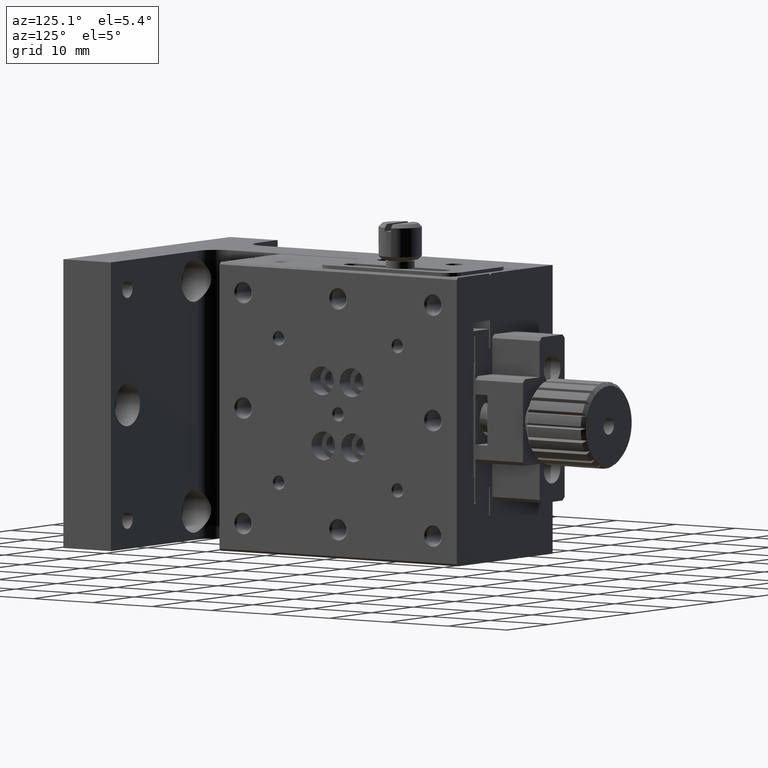
[diagram: clean part render]
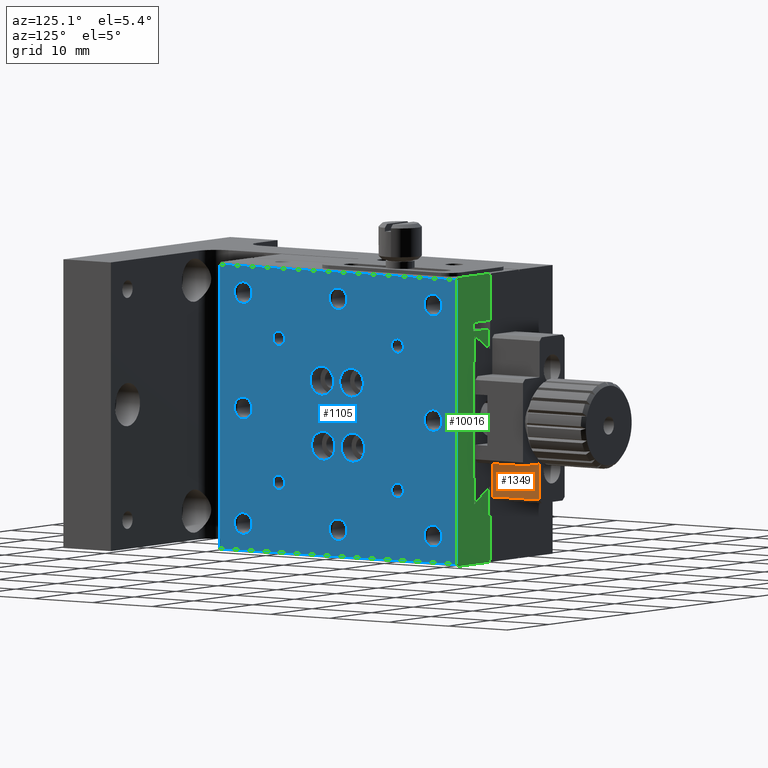
[diagram: same view with three faces highlighted in distinct colors, each labeled with its STEP entity id]
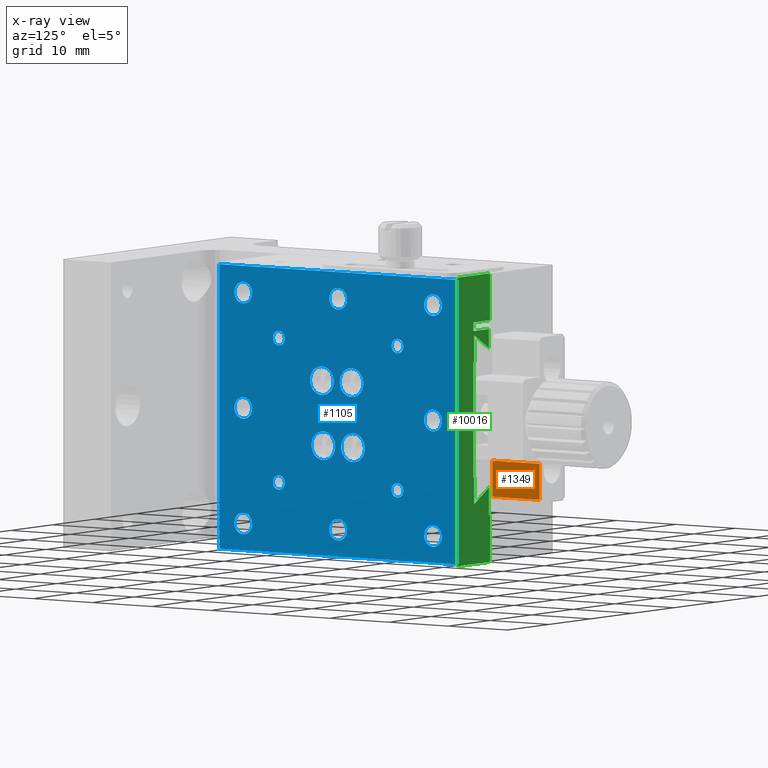
[diagram: x-ray of the same camera — body ghosted, the three highlighted faces saturated]
A machine part, auxiliary view with three faces highlighted in distinct colors.
The next image is the same camera in x-ray (body ghosted, the three faces saturated) — at least one of them is partly hidden behind the body in this view.
Their STEP definitions:

[orange] entity #1349 — the highlighted planar face has unit normal (1, 0, -0).
#24 = FACE_OUTER_BOUND ( 'NONE', #6105, .T. ) ;
#87 = CARTESIAN_POINT ( 'NONE',  ( 22.50000000000000000, 68.00000000000000000, -30.99999999999999645 ) ) ;
#260 = LINE ( 'NONE', #3422, #9553 ) ;
#509 = LINE ( 'NONE', #2769, #8584 ) ;
#581 = ORIENTED_EDGE ( 'NONE', *, *, #3580, .T. ) ;
#1212 = ORIENTED_EDGE ( 'NONE', *, *, #8216, .T. ) ;
#1349 = ADVANCED_FACE ( 'NONE', ( #24 ), #1753, .T. ) ;
#1735 = AXIS2_PLACEMENT_3D ( 'NONE', #8925, #2551, #8094 ) ;
#1753 = PLANE ( 'NONE',  #1735 ) ;
#1773 = VECTOR ( 'NONE', #4561, 1000.000000000000000 ) ;
#2286 = LINE ( 'NONE', #5500, #1773 ) ;
#2551 = DIRECTION ( 'NONE',  ( 1.000000000000000000, 0.000000000000000000, -0.000000000000000000 ) ) ;
#2769 = CARTESIAN_POINT ( 'NONE',  ( 22.50000000000000000, 68.00000000000000000, -30.99999999999999645 ) ) ;
#3189 = DIRECTION ( 'NONE',  ( 0.000000000000000000, 0.000000000000000000, -1.000000000000000000 ) ) ;
#3316 = VERTEX_POINT ( 'NONE', #5100 ) ;
#3422 = CARTESIAN_POINT ( 'NONE',  ( 22.50000000000000000, 68.00000000000000000, -26.00000000000000000 ) ) ;
#3495 = EDGE_CURVE ( 'NONE', #6792, #3316, #2286, .T. ) ;
#3580 = EDGE_CURVE ( 'NONE', #5530, #9506, #6508, .T. ) ;
#3785 = VECTOR ( 'NONE', #3189, 1000.000000000000000 ) ;
#4297 = ORIENTED_EDGE ( 'NONE', *, *, #3495, .T. ) ;
#4348 = ORIENTED_EDGE ( 'NONE', *, *, #6431, .F. ) ;
#4449 = DIRECTION ( 'NONE',  ( -0.000000000000000000, 1.000000000000000000, -0.000000000000000000 ) ) ;
#4561 = DIRECTION ( 'NONE',  ( 0.000000000000000000, 0.000000000000000000, 1.000000000000000000 ) ) ;
#5100 = CARTESIAN_POINT ( 'NONE',  ( 22.50000000000000000, 68.00000000000000000, -26.00000000000000000 ) ) ;
#5500 = CARTESIAN_POINT ( 'NONE',  ( 22.50000000000000000, 68.00000000000000000, -30.99999999999999645 ) ) ;
#5530 = VERTEX_POINT ( 'NONE', #8447 ) ;
#6105 = EDGE_LOOP ( 'NONE', ( #4297, #4348, #581, #1212 ) ) ;
#6431 = EDGE_CURVE ( 'NONE', #5530, #3316, #260, .T. ) ;
#6508 = LINE ( 'NONE', #8824, #3785 ) ;
#6529 = DIRECTION ( 'NONE',  ( 0.000000000000000000, 1.000000000000000000, 0.000000000000000000 ) ) ;
#6792 = VERTEX_POINT ( 'NONE', #87 ) ;
#8094 = DIRECTION ( 'NONE',  ( 0.000000000000000000, 0.000000000000000000, 1.000000000000000000 ) ) ;
#8216 = EDGE_CURVE ( 'NONE', #9506, #6792, #509, .T. ) ;
#8447 = CARTESIAN_POINT ( 'NONE',  ( 22.50000000000000000, 60.00000000000000000, -26.00000000000000000 ) ) ;
#8584 = VECTOR ( 'NONE', #4449, 1000.000000000000000 ) ;
#8824 = CARTESIAN_POINT ( 'NONE',  ( 22.50000000000000000, 60.00000000000000000, 4.898587196589409870E-15 ) ) ;
#8925 = CARTESIAN_POINT ( 'NONE',  ( 22.50000000000000000, 68.00000000000000000, -30.99999999999999645 ) ) ;
#9104 = CARTESIAN_POINT ( 'NONE',  ( 22.50000000000000000, 60.00000000000000000, -30.99999999999999645 ) ) ;
#9506 = VERTEX_POINT ( 'NONE', #9104 ) ;
#9553 = VECTOR ( 'NONE', #6529, 1000.000000000000000 ) ;

[blue] entity #1105 — the highlighted planar face has unit normal (-1, 0, 0).
#40 = FACE_BOUND ( 'NONE', #9294, .T. ) ;
#59 = DIRECTION ( 'NONE',  ( 1.000000000000000000, 0.000000000000000000, 0.000000000000000000 ) ) ;
#66 = VERTEX_POINT ( 'NONE', #1497 ) ;
#135 = CARTESIAN_POINT ( 'NONE',  ( 31.00000000000000000, 23.99999999999999289, -34.49999999997998401 ) ) ;
#149 = CARTESIAN_POINT ( 'NONE',  ( 30.99999999994315658, 55.99999999999999289, -2.500000000054564353 ) ) ;
#262 = DIRECTION ( 'NONE',  ( 1.000000000000000000, 0.000000000000000000, 0.000000000000000000 ) ) ;
#263 = CIRCLE ( 'NONE', #8657, 1.999999999999998224 ) ;
#386 = EDGE_CURVE ( 'NONE', #2745, #2745, #1376, .T. ) ;
#391 = CARTESIAN_POINT ( 'NONE',  ( 31.00000000000000000, 30.00000000000000000, -8.999999999957703167 ) ) ;
#431 = EDGE_CURVE ( 'NONE', #6435, #3590, #1585, .T. ) ;
#488 = CARTESIAN_POINT ( 'NONE',  ( 31.00000000000000000, 23.99999999999999289, -19.99999999999999645 ) ) ;
#668 = VERTEX_POINT ( 'NONE', #3711 ) ;
#671 = EDGE_CURVE ( 'NONE', #1743, #1743, #4580, .T. ) ;
#697 = ORIENTED_EDGE ( 'NONE', *, *, #8489, .F. ) ;
#717 = AXIS2_PLACEMENT_3D ( 'NONE', #9646, #3208, #6373 ) ;
#777 = FACE_BOUND ( 'NONE', #9437, .T. ) ;
#785 = AXIS2_PLACEMENT_3D ( 'NONE', #3931, #7210, #6308 ) ;
#832 = FACE_BOUND ( 'NONE', #5016, .T. ) ;
#871 = CARTESIAN_POINT ( 'NONE',  ( 31.00000000005684342, 39.99999999999999289, -18.99999999994861000 ) ) ;
#880 = CARTESIAN_POINT ( 'NONE',  ( 31.00000000000000000, 55.99999999999999289, -19.99999999999999645 ) ) ;
#965 = CARTESIAN_POINT ( 'NONE',  ( 31.00000000000000000, 42.24999999999999289, -17.49999999999999645 ) ) ;
#980 = VERTEX_POINT ( 'NONE', #4178 ) ;
#995 = VERTEX_POINT ( 'NONE', #1556 ) ;
#1105 = ADVANCED_FACE ( 'NONE', ( #2293, #8887, #4028, #1608, #832, #3874, #8777, #777, #7254, #4771, #3085, #3300, #40, #6517, #3973, #3246, #4881, #6300 ), #9685, .F. ) ;
#1114 = DIRECTION ( 'NONE',  ( 1.000000000000000000, -0.000000000000000000, -0.000000000000000000 ) ) ;
#1148 = EDGE_LOOP ( 'NONE', ( #9399 ) ) ;
#1171 = CARTESIAN_POINT ( 'NONE',  ( 31.00000000000000000, 23.99999999999999289, -18.50000000001727685 ) ) ;
#1219 = VERTEX_POINT ( 'NONE', #10185 ) ;
#1260 = AXIS2_PLACEMENT_3D ( 'NONE', #488, #2163, #6861 ) ;
#1265 = ORIENTED_EDGE ( 'NONE', *, *, #6188, .F. ) ;
#1270 = DIRECTION ( 'NONE',  ( 1.000000000000000000, 0.000000000000000000, 0.000000000000000000 ) ) ;
#1376 = CIRCLE ( 'NONE', #6759, 1.000000000042291726 ) ;
#1455 = CIRCLE ( 'NONE', #9386, 0.9999999999467934497 ) ;
#1497 = CARTESIAN_POINT ( 'NONE',  ( 30.99999999999999289, 19.99999999999999645, -39.69999999999999574 ) ) ;
#1503 = CIRCLE ( 'NONE', #7411, 1.499999999945430318 ) ;
#1531 = VECTOR ( 'NONE', #7122, 1000.000000000000000 ) ;
#1556 = CARTESIAN_POINT ( 'NONE',  ( 31.00000000000000000, 37.50000000000000000, -26.49999999999999645 ) ) ;
#1585 = LINE ( 'NONE', #4859, #1531 ) ;
#1608 = FACE_BOUND ( 'NONE', #4981, .T. ) ;
#1645 = VERTEX_POINT ( 'NONE', #5685 ) ;
#1650 = DIRECTION ( 'NONE',  ( 0.000000000000000000, 0.000000000000000000, 1.000000000000000000 ) ) ;
#1743 = VERTEX_POINT ( 'NONE', #965 ) ;
#1817 = ORIENTED_EDGE ( 'NONE', *, *, #386, .F. ) ;
#1891 = EDGE_CURVE ( 'NONE', #1219, #1219, #8478, .T. ) ;
#1952 = AXIS2_PLACEMENT_3D ( 'NONE', #2498, #3336, #1650 ) ;
#2022 = DIRECTION ( 'NONE',  ( 1.000000000000000000, 0.000000000000000000, 0.000000000000000000 ) ) ;
#2054 = DIRECTION ( 'NONE',  ( 0.000000000000000000, 0.000000000000000000, 1.000000000000000000 ) ) ;
#2163 = DIRECTION ( 'NONE',  ( 1.000000000000000000, 0.000000000000000000, 0.000000000000000000 ) ) ;
#2180 = CIRCLE ( 'NONE', #9942, 1.500000000020013102 ) ;
#2203 = EDGE_CURVE ( 'NONE', #3590, #1645, #4247, .T. ) ;
#2293 = FACE_OUTER_BOUND ( 'NONE', #9326, .T. ) ;
#2314 = EDGE_CURVE ( 'NONE', #1645, #66, #10352, .T. ) ;
#2324 = CARTESIAN_POINT ( 'NONE',  ( 30.99999999999999645, 19.99999999999999645, -39.69999999999999574 ) ) ;
#2342 = ORIENTED_EDGE ( 'NONE', *, *, #7385, .F. ) ;
#2429 = DIRECTION ( 'NONE',  ( 0.000000000000000000, -1.000000000000000000, 0.000000000000000000 ) ) ;
#2458 = VERTEX_POINT ( 'NONE', #149 ) ;
#2467 = CIRCLE ( 'NONE', #785, 1.499999999945430318 ) ;
#2493 = EDGE_LOOP ( 'NONE', ( #9894 ) ) ;
#2498 = CARTESIAN_POINT ( 'NONE',  ( 31.00000000000000000, 55.99999999999999289, -36.00000000000000000 ) ) ;
#2533 = EDGE_CURVE ( 'NONE', #8728, #8728, #3445, .T. ) ;
#2591 = DIRECTION ( 'NONE',  ( 1.000000000000000000, -0.000000000000000000, -0.000000000000000000 ) ) ;
#2620 = CARTESIAN_POINT ( 'NONE',  ( 30.99999999994315658, 30.00000000000000000, -29.00000000005320189 ) ) ;
#2652 = AXIS2_PLACEMENT_3D ( 'NONE', #10026, #2591, #7497 ) ;
#2668 = AXIS2_PLACEMENT_3D ( 'NONE', #880, #6513, #9900 ) ;
#2739 = EDGE_LOOP ( 'NONE', ( #697 ) ) ;
#2741 = AXIS2_PLACEMENT_3D ( 'NONE', #9523, #9742, #4669 ) ;
#2745 = VERTEX_POINT ( 'NONE', #8135 ) ;
#2824 = AXIS2_PLACEMENT_3D ( 'NONE', #6202, #9424, #5355 ) ;
#2891 = EDGE_CURVE ( 'NONE', #995, #995, #263, .T. ) ;
#2903 = ORIENTED_EDGE ( 'NONE', *, *, #6843, .F. ) ;
#2949 = EDGE_LOOP ( 'NONE', ( #2342 ) ) ;
#3085 = FACE_BOUND ( 'NONE', #3615, .T. ) ;
#3208 = DIRECTION ( 'NONE',  ( 1.000000000000000000, -0.000000000000000000, -0.000000000000000000 ) ) ;
#3246 = FACE_BOUND ( 'NONE', #1148, .T. ) ;
#3300 = FACE_BOUND ( 'NONE', #2949, .T. ) ;
#3315 = VECTOR ( 'NONE', #8539, 1000.000000000000000 ) ;
#3336 = DIRECTION ( 'NONE',  ( 1.000000000000000000, 0.000000000000000000, 0.000000000000000000 ) ) ;
#3425 = ORIENTED_EDGE ( 'NONE', *, *, #671, .F. ) ;
#3445 = CIRCLE ( 'NONE', #1260, 1.499999999982720045 ) ;
#3517 = ORIENTED_EDGE ( 'NONE', *, *, #5380, .F. ) ;
#3590 = VERTEX_POINT ( 'NONE', #7355 ) ;
#3615 = EDGE_LOOP ( 'NONE', ( #5962 ) ) ;
#3693 = ORIENTED_EDGE ( 'NONE', *, *, #431, .F. ) ;
#3711 = CARTESIAN_POINT ( 'NONE',  ( 31.00000000000000000, 55.99999999999999289, -18.50000000001727685 ) ) ;
#3720 = DIRECTION ( 'NONE',  ( 1.000000000000000000, 0.000000000000000000, 0.000000000000000000 ) ) ;
#3786 = CARTESIAN_POINT ( 'NONE',  ( 30.99999999999999645, 19.99999999999999645, -39.69999999999999574 ) ) ;
#3795 = DIRECTION ( 'NONE',  ( 1.000000000000000000, 0.000000000000000000, 0.000000000000000000 ) ) ;
#3846 = AXIS2_PLACEMENT_3D ( 'NONE', #9349, #7717, #9297 ) ;
#3863 = VERTEX_POINT ( 'NONE', #10312 ) ;
#3874 = FACE_BOUND ( 'NONE', #2739, .T. ) ;
#3877 = CARTESIAN_POINT ( 'NONE',  ( 31.00000000000000000, 39.99999999999999289, -36.00000000000000000 ) ) ;
#3931 = CARTESIAN_POINT ( 'NONE',  ( 30.99999999994315658, 55.99999999999999289, -3.999999999999994671 ) ) ;
#3973 = FACE_BOUND ( 'NONE', #9948, .T. ) ;
#4028 = FACE_BOUND ( 'NONE', #4286, .T. ) ;
#4098 = CARTESIAN_POINT ( 'NONE',  ( 30.99999999994315658, 39.99999999999999289, -3.999999999999994671 ) ) ;
#4178 = CARTESIAN_POINT ( 'NONE',  ( 31.00000000000000000, 37.25000000000000000, -17.49999999999999645 ) ) ;
#4194 = EDGE_CURVE ( 'NONE', #2458, #2458, #2467, .T. ) ;
#4247 = LINE ( 'NONE', #6732, #8485 ) ;
#4286 = EDGE_LOOP ( 'NONE', ( #4984 ) ) ;
#4303 = CIRCLE ( 'NONE', #1952, 1.500000000020013102 ) ;
#4315 = DIRECTION ( 'NONE',  ( 0.000000000000000000, 0.000000000000000000, -1.000000000000000000 ) ) ;
#4505 = VERTEX_POINT ( 'NONE', #10265 ) ;
#4580 = CIRCLE ( 'NONE', #717, 2.000000000000000000 ) ;
#4669 = DIRECTION ( 'NONE',  ( -1.230518249841690057E-16, -0.000000000000000000, -1.000000000000000000 ) ) ;
#4771 = FACE_BOUND ( 'NONE', #6825, .T. ) ;
#4859 = CARTESIAN_POINT ( 'NONE',  ( 31.00000000000000000, 19.99999999999999645, -0.3000000000000175859 ) ) ;
#4881 = FACE_BOUND ( 'NONE', #5373, .T. ) ;
#4981 = EDGE_LOOP ( 'NONE', ( #8035 ) ) ;
#4984 = ORIENTED_EDGE ( 'NONE', *, *, #8529, .F. ) ;
#5016 = EDGE_LOOP ( 'NONE', ( #10105 ) ) ;
#5190 = CIRCLE ( 'NONE', #9577, 1.000000000051386895 ) ;
#5231 = DIRECTION ( 'NONE',  ( 0.000000000000000000, 0.000000000000000000, 1.000000000000000000 ) ) ;
#5316 = CARTESIAN_POINT ( 'NONE',  ( 30.99999999994315658, 30.00000000000000000, -29.99999999999999645 ) ) ;
#5355 = DIRECTION ( 'NONE',  ( 0.000000000000000000, 0.000000000000000000, 1.000000000000000000 ) ) ;
#5373 = EDGE_LOOP ( 'NONE', ( #10211 ) ) ;
#5380 = EDGE_CURVE ( 'NONE', #8415, #8415, #4303, .T. ) ;
#5685 = CARTESIAN_POINT ( 'NONE',  ( 30.99999999999999289, 60.00000000000000000, -39.69999999999999574 ) ) ;
#5718 = EDGE_LOOP ( 'NONE', ( #7656 ) ) ;
#5851 = CARTESIAN_POINT ( 'NONE',  ( 31.00000000000000000, 37.50000000000000000, -24.49999999999999645 ) ) ;
#5854 = AXIS2_PLACEMENT_3D ( 'NONE', #5996, #3720, #9423 ) ;
#5938 = DIRECTION ( 'NONE',  ( -1.230518249841690057E-16, -0.000000000000000000, -1.000000000000000000 ) ) ;
#5962 = ORIENTED_EDGE ( 'NONE', *, *, #7737, .F. ) ;
#5996 = CARTESIAN_POINT ( 'NONE',  ( 30.99999999994315658, 23.99999999999999289, -3.999999999999994671 ) ) ;
#6000 = EDGE_CURVE ( 'NONE', #8311, #8311, #8040, .T. ) ;
#6125 = EDGE_CURVE ( 'NONE', #10004, #10004, #1455, .T. ) ;
#6166 = CARTESIAN_POINT ( 'NONE',  ( 30.99999999994315658, 49.99999999999999289, -29.99999999999999645 ) ) ;
#6174 = CARTESIAN_POINT ( 'NONE',  ( 31.00000000000000000, 23.99999999999999289, -36.00000000000000000 ) ) ;
#6188 = EDGE_CURVE ( 'NONE', #66, #6435, #7703, .T. ) ;
#6202 = CARTESIAN_POINT ( 'NONE',  ( 31.00000000000000000, 30.00000000000000000, -9.999999999999994671 ) ) ;
#6203 = CIRCLE ( 'NONE', #6368, 0.9999999999467934497 ) ;
#6291 = ORIENTED_EDGE ( 'NONE', *, *, #6125, .F. ) ;
#6300 = FACE_BOUND ( 'NONE', #7514, .T. ) ;
#6308 = DIRECTION ( 'NONE',  ( 0.000000000000000000, 0.000000000000000000, 1.000000000000000000 ) ) ;
#6368 = AXIS2_PLACEMENT_3D ( 'NONE', #6166, #1270, #2054 ) ;
#6373 = DIRECTION ( 'NONE',  ( 0.000000000000000000, 0.000000000000000000, -1.000000000000000000 ) ) ;
#6400 = VERTEX_POINT ( 'NONE', #135 ) ;
#6435 = VERTEX_POINT ( 'NONE', #7379 ) ;
#6449 = AXIS2_PLACEMENT_3D ( 'NONE', #3877, #9477, #7843 ) ;
#6501 = EDGE_CURVE ( 'NONE', #4505, #4505, #7372, .T. ) ;
#6513 = DIRECTION ( 'NONE',  ( 1.000000000000000000, 0.000000000000000000, 0.000000000000000000 ) ) ;
#6517 = FACE_BOUND ( 'NONE', #7819, .T. ) ;
#6578 = ORIENTED_EDGE ( 'NONE', *, *, #9338, .F. ) ;
#6690 = DIRECTION ( 'NONE',  ( 0.000000000000000000, 0.000000000000000000, 1.000000000000000000 ) ) ;
#6732 = CARTESIAN_POINT ( 'NONE',  ( 30.99999999999999645, 60.00000000000000000, -39.69999999999999574 ) ) ;
#6759 = AXIS2_PLACEMENT_3D ( 'NONE', #9251, #2022, #5231 ) ;
#6810 = VERTEX_POINT ( 'NONE', #391 ) ;
#6824 = CARTESIAN_POINT ( 'NONE',  ( 31.00000000000000000, 42.49999999999999289, -26.49999999999999645 ) ) ;
#6825 = EDGE_LOOP ( 'NONE', ( #1817 ) ) ;
#6843 = EDGE_CURVE ( 'NONE', #668, #668, #10249, .T. ) ;
#6849 = ORIENTED_EDGE ( 'NONE', *, *, #2891, .F. ) ;
#6861 = DIRECTION ( 'NONE',  ( 0.000000000000000000, 0.000000000000000000, 1.000000000000000000 ) ) ;
#7011 = DIRECTION ( 'NONE',  ( 0.000000000000000000, 0.000000000000000000, 1.000000000000000000 ) ) ;
#7122 = DIRECTION ( 'NONE',  ( -0.000000000000000000, 1.000000000000000000, -0.000000000000000000 ) ) ;
#7210 = DIRECTION ( 'NONE',  ( 1.000000000000000000, 0.000000000000000000, 0.000000000000000000 ) ) ;
#7254 = FACE_BOUND ( 'NONE', #10078, .T. ) ;
#7355 = CARTESIAN_POINT ( 'NONE',  ( 30.99999999999999645, 60.00000000000000000, -0.3000000000000170308 ) ) ;
#7372 = CIRCLE ( 'NONE', #5854, 1.499999999945430318 ) ;
#7378 = CIRCLE ( 'NONE', #2824, 1.000000000042291726 ) ;
#7379 = CARTESIAN_POINT ( 'NONE',  ( 30.99999999999999645, 19.99999999999999645, -0.3000000000000154210 ) ) ;
#7385 = EDGE_CURVE ( 'NONE', #3863, #3863, #6203, .T. ) ;
#7411 = AXIS2_PLACEMENT_3D ( 'NONE', #4098, #59, #9706 ) ;
#7486 = CARTESIAN_POINT ( 'NONE',  ( 31.00000000005684342, 39.99999999999999289, -19.99999999999999645 ) ) ;
#7497 = DIRECTION ( 'NONE',  ( 0.000000000000000000, 0.000000000000000000, -1.000000000000000000 ) ) ;
#7514 = EDGE_LOOP ( 'NONE', ( #6849 ) ) ;
#7519 = ORIENTED_EDGE ( 'NONE', *, *, #2203, .F. ) ;
#7656 = ORIENTED_EDGE ( 'NONE', *, *, #4194, .F. ) ;
#7703 = LINE ( 'NONE', #3786, #3315 ) ;
#7717 = DIRECTION ( 'NONE',  ( 1.000000000000000000, -0.000000000000000000, -0.000000000000000000 ) ) ;
#7737 = EDGE_CURVE ( 'NONE', #8765, #8765, #5190, .T. ) ;
#7819 = EDGE_LOOP ( 'NONE', ( #6578 ) ) ;
#7843 = DIRECTION ( 'NONE',  ( 0.000000000000000000, 0.000000000000000000, 1.000000000000000000 ) ) ;
#8028 = ORIENTED_EDGE ( 'NONE', *, *, #2314, .F. ) ;
#8035 = ORIENTED_EDGE ( 'NONE', *, *, #6501, .F. ) ;
#8040 = CIRCLE ( 'NONE', #2652, 1.999999999999998224 ) ;
#8135 = CARTESIAN_POINT ( 'NONE',  ( 31.00000000000000000, 49.99999999999999289, -8.999999999957703167 ) ) ;
#8311 = VERTEX_POINT ( 'NONE', #6824 ) ;
#8415 = VERTEX_POINT ( 'NONE', #8461 ) ;
#8461 = CARTESIAN_POINT ( 'NONE',  ( 31.00000000000000000, 55.99999999999999289, -34.49999999997998401 ) ) ;
#8478 = CIRCLE ( 'NONE', #6449, 1.500000000020013102 ) ;
#8485 = VECTOR ( 'NONE', #5938, 1000.000000000000000 ) ;
#8489 = EDGE_CURVE ( 'NONE', #6400, #6400, #2180, .T. ) ;
#8529 = EDGE_CURVE ( 'NONE', #10361, #10361, #1503, .T. ) ;
#8539 = DIRECTION ( 'NONE',  ( 1.230518249841690057E-16, 0.000000000000000000, 1.000000000000000000 ) ) ;
#8657 = AXIS2_PLACEMENT_3D ( 'NONE', #5851, #1114, #4315 ) ;
#8728 = VERTEX_POINT ( 'NONE', #1171 ) ;
#8765 = VERTEX_POINT ( 'NONE', #871 ) ;
#8777 = FACE_BOUND ( 'NONE', #2493, .T. ) ;
#8887 = FACE_BOUND ( 'NONE', #5718, .T. ) ;
#8913 = CIRCLE ( 'NONE', #3846, 2.000000000000000000 ) ;
#9251 = CARTESIAN_POINT ( 'NONE',  ( 31.00000000000000000, 49.99999999999999289, -9.999999999999994671 ) ) ;
#9283 = DIRECTION ( 'NONE',  ( 0.000000000000000000, 0.000000000000000000, 1.000000000000000000 ) ) ;
#9294 = EDGE_LOOP ( 'NONE', ( #6291 ) ) ;
#9297 = DIRECTION ( 'NONE',  ( 0.000000000000000000, 0.000000000000000000, -1.000000000000000000 ) ) ;
#9326 = EDGE_LOOP ( 'NONE', ( #3693, #1265, #8028, #7519 ) ) ;
#9335 = DIRECTION ( 'NONE',  ( 1.000000000000000000, 0.000000000000000000, 0.000000000000000000 ) ) ;
#9336 = VECTOR ( 'NONE', #2429, 1000.000000000000000 ) ;
#9338 = EDGE_CURVE ( 'NONE', #6810, #6810, #7378, .T. ) ;
#9349 = CARTESIAN_POINT ( 'NONE',  ( 31.00000000000000000, 37.25000000000000000, -15.49999999999999467 ) ) ;
#9386 = AXIS2_PLACEMENT_3D ( 'NONE', #5316, #9335, #9283 ) ;
#9399 = ORIENTED_EDGE ( 'NONE', *, *, #6000, .F. ) ;
#9423 = DIRECTION ( 'NONE',  ( 0.000000000000000000, 0.000000000000000000, 1.000000000000000000 ) ) ;
#9424 = DIRECTION ( 'NONE',  ( 1.000000000000000000, 0.000000000000000000, 0.000000000000000000 ) ) ;
#9437 = EDGE_LOOP ( 'NONE', ( #3517 ) ) ;
#9477 = DIRECTION ( 'NONE',  ( 1.000000000000000000, 0.000000000000000000, 0.000000000000000000 ) ) ;
#9523 = CARTESIAN_POINT ( 'NONE',  ( 30.99999999999999645, 19.99999999999999645, -39.69999999999999574 ) ) ;
#9577 = AXIS2_PLACEMENT_3D ( 'NONE', #7486, #262, #6690 ) ;
#9646 = CARTESIAN_POINT ( 'NONE',  ( 31.00000000000000000, 42.24999999999999289, -15.49999999999999467 ) ) ;
#9672 = CARTESIAN_POINT ( 'NONE',  ( 30.99999999994315658, 39.99999999999999289, -2.500000000054564353 ) ) ;
#9685 = PLANE ( 'NONE',  #2741 ) ;
#9706 = DIRECTION ( 'NONE',  ( 0.000000000000000000, 0.000000000000000000, 1.000000000000000000 ) ) ;
#9742 = DIRECTION ( 'NONE',  ( -1.000000000000000000, 0.000000000000000000, 1.230518249841690057E-16 ) ) ;
#9894 = ORIENTED_EDGE ( 'NONE', *, *, #1891, .F. ) ;
#9900 = DIRECTION ( 'NONE',  ( 0.000000000000000000, 0.000000000000000000, 1.000000000000000000 ) ) ;
#9942 = AXIS2_PLACEMENT_3D ( 'NONE', #6174, #3795, #7011 ) ;
#9948 = EDGE_LOOP ( 'NONE', ( #3425 ) ) ;
#10004 = VERTEX_POINT ( 'NONE', #2620 ) ;
#10026 = CARTESIAN_POINT ( 'NONE',  ( 31.00000000000000000, 42.49999999999999289, -24.49999999999999645 ) ) ;
#10078 = EDGE_LOOP ( 'NONE', ( #2903 ) ) ;
#10105 = ORIENTED_EDGE ( 'NONE', *, *, #2533, .F. ) ;
#10148 = EDGE_CURVE ( 'NONE', #980, #980, #8913, .T. ) ;
#10185 = CARTESIAN_POINT ( 'NONE',  ( 31.00000000000000000, 39.99999999999999289, -34.49999999997998401 ) ) ;
#10211 = ORIENTED_EDGE ( 'NONE', *, *, #10148, .F. ) ;
#10249 = CIRCLE ( 'NONE', #2668, 1.499999999982720045 ) ;
#10265 = CARTESIAN_POINT ( 'NONE',  ( 30.99999999994315658, 23.99999999999999289, -2.500000000054564353 ) ) ;
#10312 = CARTESIAN_POINT ( 'NONE',  ( 30.99999999994315658, 49.99999999999999289, -29.00000000005320189 ) ) ;
#10352 = LINE ( 'NONE', #2324, #9336 ) ;
#10361 = VERTEX_POINT ( 'NONE', #9672 ) ;

[green] entity #10016 — the highlighted planar face has unit normal (0, -1, 0).
#49 = CARTESIAN_POINT ( 'NONE',  ( 27.00000000000000000, 60.00000000000000000, 4.898587196589409870E-15 ) ) ;
#61 = LINE ( 'NONE', #3946, #4485 ) ;
#158 = DIRECTION ( 'NONE',  ( 0.7071067811865470176, 0.000000000000000000, 0.7071067811865480168 ) ) ;
#302 = EDGE_CURVE ( 'NONE', #8991, #7812, #1383, .T. ) ;
#320 = CARTESIAN_POINT ( 'NONE',  ( 27.00000000000000000, 60.00000000000000000, -6.500000000000005329 ) ) ;
#330 = VECTOR ( 'NONE', #4306, 1000.000000000000114 ) ;
#341 = DIRECTION ( 'NONE',  ( 0.000000000000000000, -1.000000000000000000, 0.000000000000000000 ) ) ;
#370 = ORIENTED_EDGE ( 'NONE', *, *, #1869, .T. ) ;
#401 = CARTESIAN_POINT ( 'NONE',  ( 31.00000000000000000, 60.00000000000000000, -9.250251154346389072E-15 ) ) ;
#449 = EDGE_CURVE ( 'NONE', #1274, #8991, #7926, .T. ) ;
#499 = DIRECTION ( 'NONE',  ( -0.8659960399471572368, 0.000000000000000000, 0.5000508562094874154 ) ) ;
#568 = LINE ( 'NONE', #6938, #8549 ) ;
#618 = VERTEX_POINT ( 'NONE', #691 ) ;
#691 = CARTESIAN_POINT ( 'NONE',  ( 23.30000000000000426, 60.00000000000000000, -40.00000000000000000 ) ) ;
#721 = VERTEX_POINT ( 'NONE', #9593 ) ;
#745 = ORIENTED_EDGE ( 'NONE', *, *, #3210, .F. ) ;
#798 = EDGE_CURVE ( 'NONE', #2271, #7877, #8226, .T. ) ;
#807 = CARTESIAN_POINT ( 'NONE',  ( 23.00000000000000000, 60.00000000000000000, -33.49999999999999289 ) ) ;
#843 = DIRECTION ( 'NONE',  ( 0.000000000000000000, 0.000000000000000000, -1.000000000000000000 ) ) ;
#947 = LINE ( 'NONE', #7376, #7171 ) ;
#1010 = ORIENTED_EDGE ( 'NONE', *, *, #4573, .F. ) ;
#1036 = DIRECTION ( 'NONE',  ( 0.000000000000000000, 0.000000000000000000, -1.000000000000000000 ) ) ;
#1039 = ORIENTED_EDGE ( 'NONE', *, *, #4387, .T. ) ;
#1044 = LINE ( 'NONE', #401, #6712 ) ;
#1059 = CARTESIAN_POINT ( 'NONE',  ( 23.30000000000000782, 60.00000000000000000, -10.32699999999999463 ) ) ;
#1107 = LINE ( 'NONE', #1059, #330 ) ;
#1168 = VECTOR ( 'NONE', #1242, 1000.000000000000114 ) ;
#1183 = CARTESIAN_POINT ( 'NONE',  ( 22.99999999999999289, 60.00000000000000000, -39.70000000000000284 ) ) ;
#1242 = DIRECTION ( 'NONE',  ( 0.7071067811865680008, 0.000000000000000000, 0.7071067811865270336 ) ) ;
#1274 = VERTEX_POINT ( 'NONE', #3957 ) ;
#1383 = LINE ( 'NONE', #2117, #5573 ) ;
#1510 = DIRECTION ( 'NONE',  ( -1.000000000000000000, -0.000000000000000000, -0.000000000000000000 ) ) ;
#1562 = ORIENTED_EDGE ( 'NONE', *, *, #3415, .F. ) ;
#1601 = ORIENTED_EDGE ( 'NONE', *, *, #5878, .F. ) ;
#1645 = VERTEX_POINT ( 'NONE', #5685 ) ;
#1755 = EDGE_CURVE ( 'NONE', #4148, #2479, #1895, .T. ) ;
#1869 = EDGE_CURVE ( 'NONE', #4584, #3731, #3045, .T. ) ;
#1895 = LINE ( 'NONE', #320, #6632 ) ;
#1964 = VECTOR ( 'NONE', #6485, 1000.000000000000000 ) ;
#2041 = CARTESIAN_POINT ( 'NONE',  ( 27.00000000000000000, 60.00000000000000000, -27.99999999999999645 ) ) ;
#2117 = CARTESIAN_POINT ( 'NONE',  ( 26.80000000000001137, 60.00000000000000000, -31.69399999999999196 ) ) ;
#2141 = DIRECTION ( 'NONE',  ( 1.000000000000000000, 0.000000000000000000, 0.000000000000000000 ) ) ;
#2145 = EDGE_CURVE ( 'NONE', #5536, #3731, #3565, .T. ) ;
#2184 = ORIENTED_EDGE ( 'NONE', *, *, #2203, .T. ) ;
#2203 = EDGE_CURVE ( 'NONE', #3590, #1645, #4247, .T. ) ;
#2271 = VERTEX_POINT ( 'NONE', #807 ) ;
#2326 = AXIS2_PLACEMENT_3D ( 'NONE', #7565, #341, #9093 ) ;
#2479 = VERTEX_POINT ( 'NONE', #4483 ) ;
#2596 = ORIENTED_EDGE ( 'NONE', *, *, #6533, .T. ) ;
#2598 = VECTOR ( 'NONE', #6778, 1000.000000000000000 ) ;
#2660 = FACE_OUTER_BOUND ( 'NONE', #9443, .T. ) ;
#2699 = VERTEX_POINT ( 'NONE', #5425 ) ;
#3045 = LINE ( 'NONE', #4618, #7298 ) ;
#3117 = VECTOR ( 'NONE', #843, 1000.000000000000000 ) ;
#3210 = EDGE_CURVE ( 'NONE', #4148, #10368, #8892, .T. ) ;
#3253 = ORIENTED_EDGE ( 'NONE', *, *, #8600, .F. ) ;
#3312 = CARTESIAN_POINT ( 'NONE',  ( 26.80000000000001137, 60.00000000000000000, -31.69399999999999196 ) ) ;
#3326 = VERTEX_POINT ( 'NONE', #9265 ) ;
#3415 = EDGE_CURVE ( 'NONE', #3590, #721, #9111, .T. ) ;
#3528 = DIRECTION ( 'NONE',  ( 0.000000000000000000, 0.000000000000000000, 1.000000000000000000 ) ) ;
#3565 = LINE ( 'NONE', #6883, #2598 ) ;
#3584 = CARTESIAN_POINT ( 'NONE',  ( 23.00000000000000000, 60.00000000000000000, -6.500000000000005329 ) ) ;
#3590 = VERTEX_POINT ( 'NONE', #7355 ) ;
#3613 = EDGE_CURVE ( 'NONE', #10368, #8528, #4184, .T. ) ;
#3731 = VERTEX_POINT ( 'NONE', #10106 ) ;
#3771 = DIRECTION ( 'NONE',  ( -0.7071067811865510144, 0.000000000000000000, 0.7071067811865441310 ) ) ;
#3893 = CARTESIAN_POINT ( 'NONE',  ( 23.30000000000000782, 60.00000000000000000, 4.898587196589409870E-15 ) ) ;
#3946 = CARTESIAN_POINT ( 'NONE',  ( 31.00000000000000000, 60.00000000000000000, -6.500000000000005329 ) ) ;
#3953 = ORIENTED_EDGE ( 'NONE', *, *, #7771, .T. ) ;
#3957 = CARTESIAN_POINT ( 'NONE',  ( 26.80000000000001137, 60.00000000000000000, -27.99999999999999645 ) ) ;
#3980 = ORIENTED_EDGE ( 'NONE', *, *, #449, .F. ) ;
#4049 = LINE ( 'NONE', #4905, #1964 ) ;
#4148 = VERTEX_POINT ( 'NONE', #4725 ) ;
#4184 = LINE ( 'NONE', #8103, #5136 ) ;
#4241 = DIRECTION ( 'NONE',  ( -1.000000000000000000, -0.000000000000000000, -0.000000000000000000 ) ) ;
#4247 = LINE ( 'NONE', #6732, #8485 ) ;
#4306 = DIRECTION ( 'NONE',  ( 0.8659960399471574588, 0.000000000000000000, 0.5000508562094870824 ) ) ;
#4387 = EDGE_CURVE ( 'NONE', #3326, #2699, #947, .T. ) ;
#4483 = CARTESIAN_POINT ( 'NONE',  ( 27.00000000000000000, 60.00000000000000000, -6.500000000000005329 ) ) ;
#4485 = VECTOR ( 'NONE', #8133, 1000.000000000000000 ) ;
#4551 = ORIENTED_EDGE ( 'NONE', *, *, #2145, .F. ) ;
#4573 = EDGE_CURVE ( 'NONE', #2271, #10018, #6405, .T. ) ;
#4584 = VERTEX_POINT ( 'NONE', #8826 ) ;
#4614 = LINE ( 'NONE', #2041, #8725 ) ;
#4618 = CARTESIAN_POINT ( 'NONE',  ( 26.80000000000001137, 60.00000000000000000, -11.99999999999999467 ) ) ;
#4725 = CARTESIAN_POINT ( 'NONE',  ( 27.00000000000000000, 60.00000000000000000, -7.699999999999994849 ) ) ;
#4903 = LINE ( 'NONE', #3893, #6346 ) ;
#4905 = CARTESIAN_POINT ( 'NONE',  ( 31.00000000000000000, 60.00000000000000000, -39.99999999999999289 ) ) ;
#4959 = EDGE_CURVE ( 'NONE', #3326, #8876, #10334, .T. ) ;
#5002 = CARTESIAN_POINT ( 'NONE',  ( 23.30000000000000782, 60.00000000000000000, -33.49999999999999289 ) ) ;
#5048 = ORIENTED_EDGE ( 'NONE', *, *, #302, .F. ) ;
#5059 = CARTESIAN_POINT ( 'NONE',  ( 30.69999999999998508, 60.00000000000000000, -39.99999999999999289 ) ) ;
#5129 = VECTOR ( 'NONE', #8164, 1000.000000000000000 ) ;
#5136 = VECTOR ( 'NONE', #1036, 1000.000000000000000 ) ;
#5238 = LINE ( 'NONE', #8460, #1168 ) ;
#5425 = CARTESIAN_POINT ( 'NONE',  ( 23.30000000000000782, 60.00000000000000000, -8.632739033822088781E-15 ) ) ;
#5446 = ORIENTED_EDGE ( 'NONE', *, *, #9790, .F. ) ;
#5536 = VERTEX_POINT ( 'NONE', #6659 ) ;
#5573 = VECTOR ( 'NONE', #499, 1000.000000000000114 ) ;
#5580 = VERTEX_POINT ( 'NONE', #7458 ) ;
#5685 = CARTESIAN_POINT ( 'NONE',  ( 30.99999999999999289, 60.00000000000000000, -39.69999999999999574 ) ) ;
#5731 = CARTESIAN_POINT ( 'NONE',  ( 31.00000000000000000, 60.00000000000000000, -7.699999999999994849 ) ) ;
#5857 = EDGE_CURVE ( 'NONE', #8876, #2479, #61, .T. ) ;
#5878 = EDGE_CURVE ( 'NONE', #618, #7735, #4049, .T. ) ;
#5938 = DIRECTION ( 'NONE',  ( -1.230518249841690057E-16, -0.000000000000000000, -1.000000000000000000 ) ) ;
#6047 = ORIENTED_EDGE ( 'NONE', *, *, #798, .T. ) ;
#6274 = EDGE_CURVE ( 'NONE', #4584, #5580, #6312, .T. ) ;
#6311 = VECTOR ( 'NONE', #6779, 1000.000000000000000 ) ;
#6312 = LINE ( 'NONE', #49, #7712 ) ;
#6346 = VECTOR ( 'NONE', #8078, 1000.000000000000000 ) ;
#6381 = CARTESIAN_POINT ( 'NONE',  ( 23.30000000000000782, 60.00000000000000000, -10.32699999999999463 ) ) ;
#6405 = LINE ( 'NONE', #7040, #7178 ) ;
#6485 = DIRECTION ( 'NONE',  ( 1.000000000000000000, 0.000000000000000000, 0.000000000000000000 ) ) ;
#6533 = EDGE_CURVE ( 'NONE', #618, #10018, #568, .T. ) ;
#6587 = DIRECTION ( 'NONE',  ( 1.000000000000000000, 0.000000000000000000, 0.000000000000000000 ) ) ;
#6632 = VECTOR ( 'NONE', #3528, 1000.000000000000000 ) ;
#6659 = CARTESIAN_POINT ( 'NONE',  ( 26.80000000000000782, 60.00000000000000000, -8.305999999999988503 ) ) ;
#6712 = VECTOR ( 'NONE', #4241, 1000.000000000000000 ) ;
#6732 = CARTESIAN_POINT ( 'NONE',  ( 30.99999999999999645, 60.00000000000000000, -39.69999999999999574 ) ) ;
#6778 = DIRECTION ( 'NONE',  ( 0.000000000000000000, 0.000000000000000000, -1.000000000000000000 ) ) ;
#6779 = DIRECTION ( 'NONE',  ( -0.7071067811865511255, 0.000000000000000000, 0.7071067811865440200 ) ) ;
#6883 = CARTESIAN_POINT ( 'NONE',  ( 26.80000000000001137, 60.00000000000000000, 4.898587196589409870E-15 ) ) ;
#6938 = CARTESIAN_POINT ( 'NONE',  ( 22.99999999999998934, 60.00000000000000000, -39.69999999999999574 ) ) ;
#6998 = ORIENTED_EDGE ( 'NONE', *, *, #4959, .F. ) ;
#7008 = ORIENTED_EDGE ( 'NONE', *, *, #5857, .F. ) ;
#7040 = CARTESIAN_POINT ( 'NONE',  ( 23.00000000000000000, 60.00000000000000000, 4.898587196589409870E-15 ) ) ;
#7157 = DIRECTION ( 'NONE',  ( 0.000000000000000000, 0.000000000000000000, -1.000000000000000000 ) ) ;
#7171 = VECTOR ( 'NONE', #158, 1000.000000000000000 ) ;
#7178 = VECTOR ( 'NONE', #8721, 1000.000000000000000 ) ;
#7235 = CARTESIAN_POINT ( 'NONE',  ( 26.80000000000001137, 60.00000000000000000, 4.898587196589409870E-15 ) ) ;
#7298 = VECTOR ( 'NONE', #1510, 1000.000000000000000 ) ;
#7355 = CARTESIAN_POINT ( 'NONE',  ( 30.99999999999999645, 60.00000000000000000, -0.3000000000000170308 ) ) ;
#7376 = CARTESIAN_POINT ( 'NONE',  ( 23.30000000000000782, 60.00000000000000000, -8.369289483269090134E-15 ) ) ;
#7446 = VECTOR ( 'NONE', #9662, 1000.000000000000000 ) ;
#7458 = CARTESIAN_POINT ( 'NONE',  ( 27.00000000000000000, 60.00000000000000000, -27.99999999999999645 ) ) ;
#7529 = CARTESIAN_POINT ( 'NONE',  ( 31.00000000000000000, 60.00000000000000000, -0.3000000000000171418 ) ) ;
#7565 = CARTESIAN_POINT ( 'NONE',  ( 31.00000000000000000, 60.00000000000000000, 4.898587196589409870E-15 ) ) ;
#7613 = EDGE_CURVE ( 'NONE', #8528, #5536, #1107, .T. ) ;
#7622 = VECTOR ( 'NONE', #6587, 1000.000000000000000 ) ;
#7712 = VECTOR ( 'NONE', #7157, 1000.000000000000000 ) ;
#7735 = VERTEX_POINT ( 'NONE', #5059 ) ;
#7771 = EDGE_CURVE ( 'NONE', #1274, #5580, #4614, .T. ) ;
#7812 = VERTEX_POINT ( 'NONE', #9472 ) ;
#7877 = VERTEX_POINT ( 'NONE', #8886 ) ;
#7926 = LINE ( 'NONE', #7235, #7446 ) ;
#7939 = ORIENTED_EDGE ( 'NONE', *, *, #9532, .F. ) ;
#8064 = CARTESIAN_POINT ( 'NONE',  ( 23.00000000000000000, 60.00000000000000000, 4.898587196589409870E-15 ) ) ;
#8078 = DIRECTION ( 'NONE',  ( 0.000000000000000000, 0.000000000000000000, -1.000000000000000000 ) ) ;
#8084 = CARTESIAN_POINT ( 'NONE',  ( 23.30000000000000782, 60.00000000000000000, -7.699999999999994849 ) ) ;
#8103 = CARTESIAN_POINT ( 'NONE',  ( 23.30000000000000782, 60.00000000000000000, 4.898587196589409870E-15 ) ) ;
#8133 = DIRECTION ( 'NONE',  ( 1.000000000000000000, 0.000000000000000000, 0.000000000000000000 ) ) ;
#8164 = DIRECTION ( 'NONE',  ( -1.000000000000000000, -0.000000000000000000, -0.000000000000000000 ) ) ;
#8185 = ORIENTED_EDGE ( 'NONE', *, *, #3613, .F. ) ;
#8226 = LINE ( 'NONE', #5002, #7622 ) ;
#8460 = CARTESIAN_POINT ( 'NONE',  ( 30.69999999999998508, 60.00000000000000000, -39.99999999999999289 ) ) ;
#8485 = VECTOR ( 'NONE', #5938, 1000.000000000000000 ) ;
#8528 = VERTEX_POINT ( 'NONE', #6381 ) ;
#8549 = VECTOR ( 'NONE', #3771, 999.9999999999998863 ) ;
#8600 = EDGE_CURVE ( 'NONE', #7812, #7877, #4903, .T. ) ;
#8721 = DIRECTION ( 'NONE',  ( 0.000000000000000000, 0.000000000000000000, -1.000000000000000000 ) ) ;
#8725 = VECTOR ( 'NONE', #2141, 1000.000000000000000 ) ;
#8825 = ORIENTED_EDGE ( 'NONE', *, *, #6274, .F. ) ;
#8826 = CARTESIAN_POINT ( 'NONE',  ( 27.00000000000000000, 60.00000000000000000, -11.99999999999999467 ) ) ;
#8876 = VERTEX_POINT ( 'NONE', #3584 ) ;
#8886 = CARTESIAN_POINT ( 'NONE',  ( 23.30000000000000782, 60.00000000000000000, -33.49999999999999289 ) ) ;
#8889 = ORIENTED_EDGE ( 'NONE', *, *, #7613, .F. ) ;
#8892 = LINE ( 'NONE', #5731, #5129 ) ;
#8991 = VERTEX_POINT ( 'NONE', #3312 ) ;
#9093 = DIRECTION ( 'NONE',  ( 0.000000000000000000, 0.000000000000000000, -1.000000000000000000 ) ) ;
#9111 = LINE ( 'NONE', #7529, #6311 ) ;
#9125 = ORIENTED_EDGE ( 'NONE', *, *, #1755, .T. ) ;
#9265 = CARTESIAN_POINT ( 'NONE',  ( 23.00000000000000000, 60.00000000000000000, -0.3000000000000199174 ) ) ;
#9443 = EDGE_LOOP ( 'NONE', ( #1562, #2184, #5446, #1601, #2596, #1010, #6047, #3253, #5048, #3980, #3953, #8825, #370, #4551, #8889, #8185, #745, #9125, #7008, #6998, #1039, #7939 ) ) ;
#9472 = CARTESIAN_POINT ( 'NONE',  ( 23.30000000000000426, 60.00000000000000000, -29.67300000000000182 ) ) ;
#9532 = EDGE_CURVE ( 'NONE', #721, #2699, #1044, .T. ) ;
#9593 = CARTESIAN_POINT ( 'NONE',  ( 30.69999999999998863, 60.00000000000000000, -9.387402729165822738E-15 ) ) ;
#9662 = DIRECTION ( 'NONE',  ( 0.000000000000000000, 0.000000000000000000, -1.000000000000000000 ) ) ;
#9790 = EDGE_CURVE ( 'NONE', #7735, #1645, #5238, .T. ) ;
#9940 = PLANE ( 'NONE',  #2326 ) ;
#10016 = ADVANCED_FACE ( 'NONE', ( #2660 ), #9940, .F. ) ;
#10018 = VERTEX_POINT ( 'NONE', #1183 ) ;
#10106 = CARTESIAN_POINT ( 'NONE',  ( 26.80000000000001137, 60.00000000000000000, -11.99999999999999467 ) ) ;
#10334 = LINE ( 'NONE', #8064, #3117 ) ;
#10368 = VERTEX_POINT ( 'NONE', #8084 ) ;